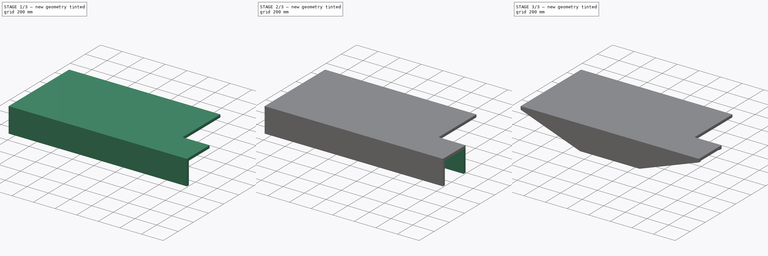
[diagram: build sequence overview — one tinted view per stage of 3, left to right]
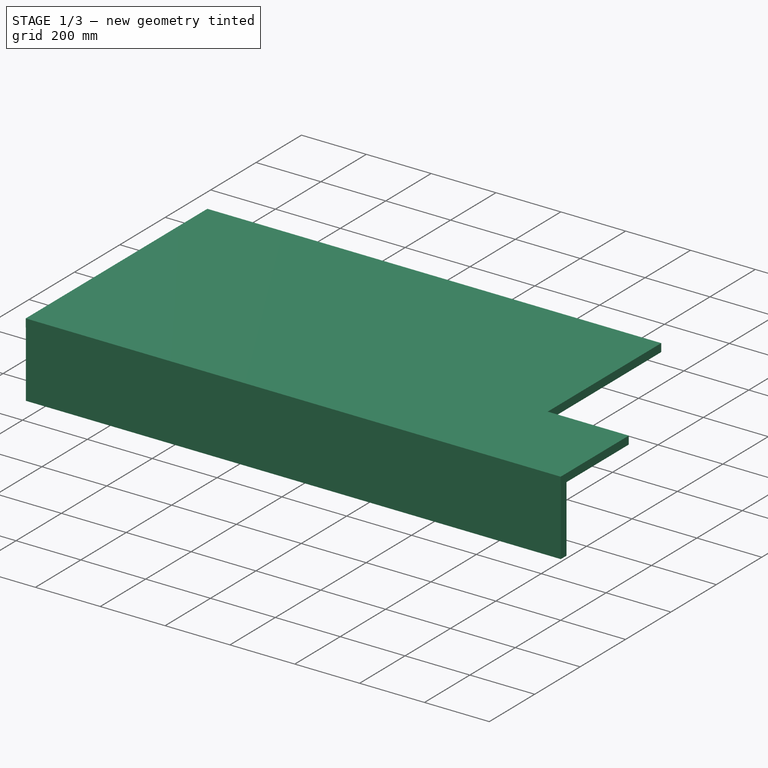
[diagram: stage 1 of 3 — iso view after this stage's code; geometry added in this stage tinted green]
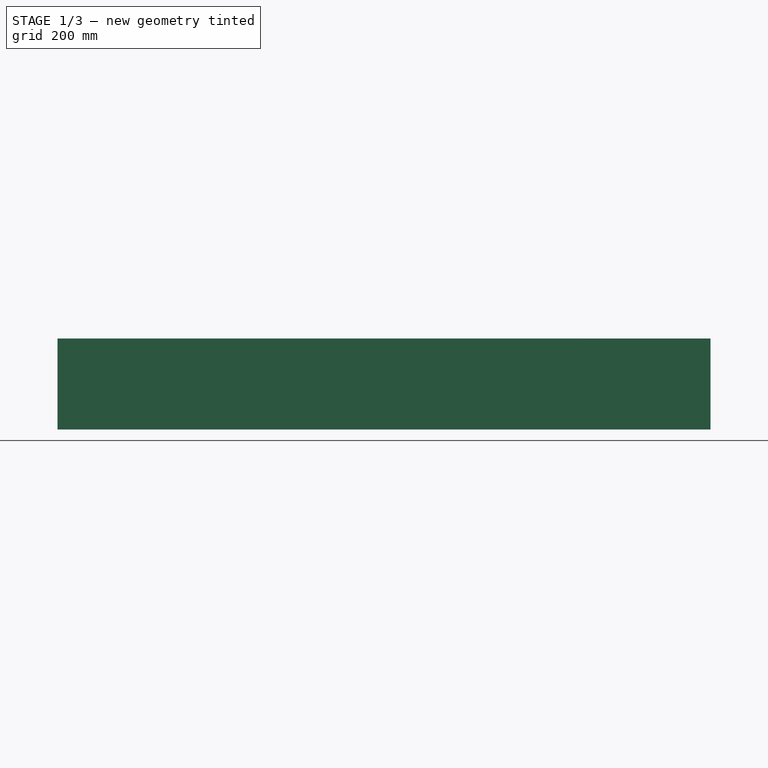
[diagram: stage 1 of 3 — front view after this stage's code; geometry added in this stage tinted green]
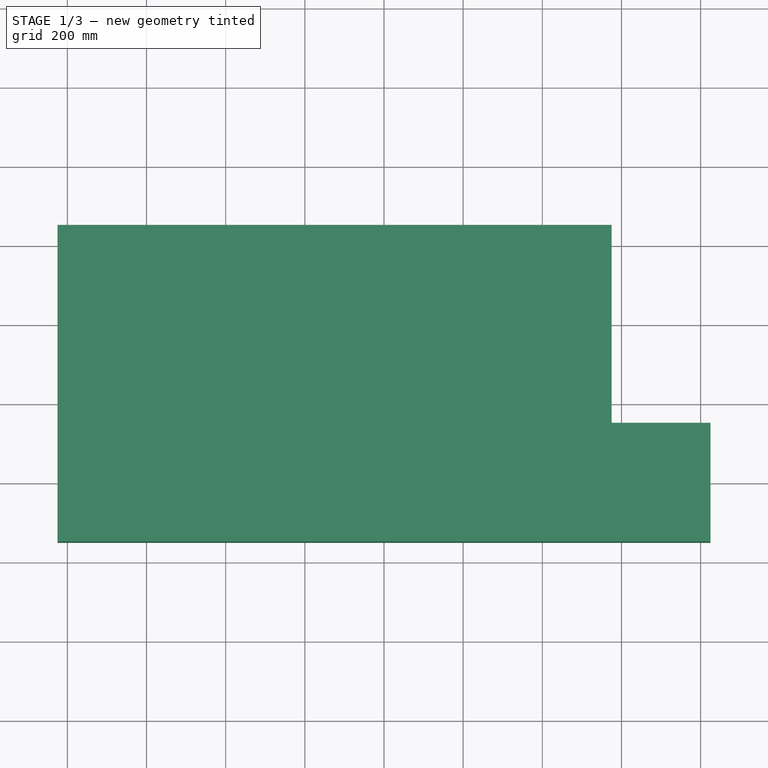
[diagram: stage 1 of 3 — top view after this stage's code; geometry added in this stage tinted green]
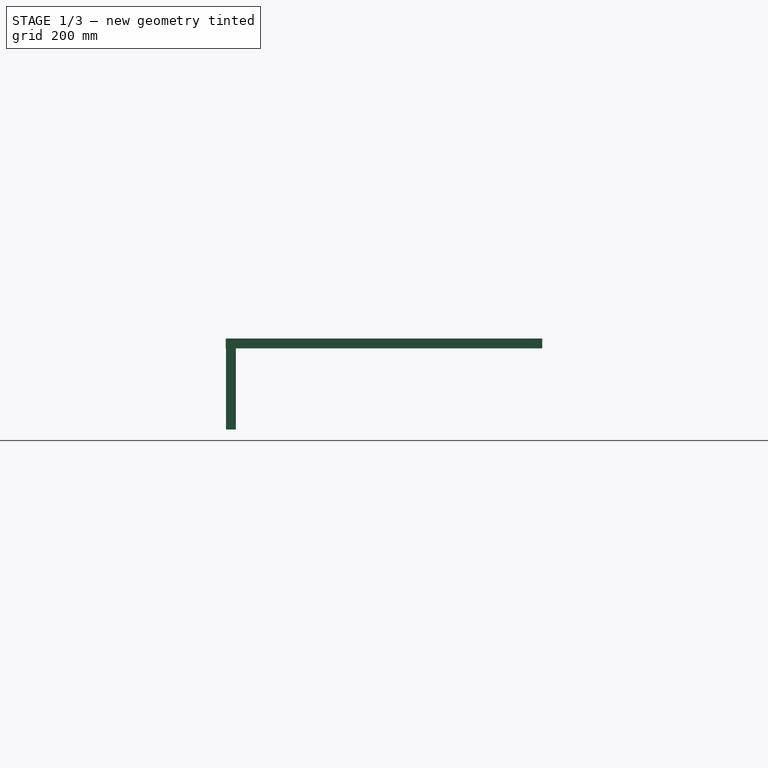
[diagram: stage 1 of 3 — right view after this stage's code; geometry added in this stage tinted green]
FCSTD DOCUMENT  (FreeCAD 0.17R5235 (Git shallow))
Label: PlatformeDroit
License: All rights reserved
LicenseURL: http://en.wikipedia.org/wiki/All_rights_reserved
objects: Sketcher::SketchObject×3, PartDesign::Pad×3, PartDesign::Mirrored×2, PartDesign::Body×1, Part::Chamfer×1
note: 13 computed .brp shape members not serialized (recipe doc carries the construction recipe); baked Part::Feature solids carry a one-line shape summary decoded from their .brp

FEATURE [Sketcher::SketchObject] Sketch  label="Plateforme_Sketch"
  MapMode = 5
  Support = -> [XY_Plane]
  sketch-geometry (6):
    g0: LineSegment StartX=825 StartY=-150 StartZ=0 EndX=-825 EndY=-150 EndZ=0
    g1: LineSegment StartX=-825 StartY=-150 StartZ=0 EndX=-825 EndY=650 EndZ=0
    g2: LineSegment StartX=575 StartY=650 StartZ=0 EndX=575 EndY=150 EndZ=0
    g3: LineSegment StartX=825 StartY=150 StartZ=0 EndX=575 EndY=150 EndZ=0
    g4: LineSegment StartX=825 StartY=150 StartZ=0 EndX=825 EndY=-150 EndZ=0
    g5: LineSegment StartX=575 StartY=650 StartZ=0 EndX=-825 EndY=650 EndZ=0
  constraints (18):
    c: Coincident(g0,g1)
    c: Horizontal(g0)
    c: Vertical(g1)
    c: Vertical(g2)
    c: Coincident(g3,g2)
    c: Horizontal(g3)
    c: DistanceX(g0,g0) = 1650
    c: DistanceY(g0,g1) = 800
    c: Coincident(g4,g3)
    c: Coincident(g4,g0)
    c: Vertical(g4)
    c: Coincident(g5,g2)
    c: Coincident(g5,g1)
    c: Horizontal(g5)
    c: DistanceX(g2,g3) = 250
    c: DistanceY(g0,g3) = 300
    c: Symmetric(g3,g0,g-1)
    c: Symmetric(g0,g0,g-2)
FEATURE [PartDesign::Pad] Pad  label="plateforme_Pad"
  Length = 25
  Length2 = 100
  Profile = -> Sketch
  Type = 0
FEATURE [Sketcher::SketchObject] Sketch001  label="Support_Sketch"
  MapMode = 5
  Placement = pos=(0,0,0) rot=(1,0,0;3.14159rad)
  Support = -> [Pad]
  sketch-geometry (4):
    g0: LineSegment StartX=-825 StartY=149.323 StartZ=0 EndX=825 EndY=149.323 EndZ=0
    g1: LineSegment StartX=825 StartY=149.323 StartZ=0 EndX=825 EndY=124.323 EndZ=0
    g2: LineSegment StartX=825 StartY=124.323 StartZ=0 EndX=-825 EndY=124.323 EndZ=0
    g3: LineSegment StartX=-825 StartY=124.323 StartZ=0 EndX=-825 EndY=149.323 EndZ=0
  constraints (11):
    c: Coincident(g0,g1)
    c: Coincident(g1,g2)
    c: Coincident(g2,g3)
    c: Coincident(g3,g0)
    c: Horizontal(g0)
    c: Horizontal(g2)
    c: Vertical(g1)
    c: Vertical(g3)
    c: DistanceY(g1,g0) = 25
    c: DistanceX(g0,g0) = 1650
    c: Symmetric(g0,g0,g-2)
FEATURE [PartDesign::Pad] Pad001  label="Support_Pad"
  BaseFeature = -> Pad
  Length = 205
  Length2 = 100
  Profile = -> Sketch001
  Type = 0
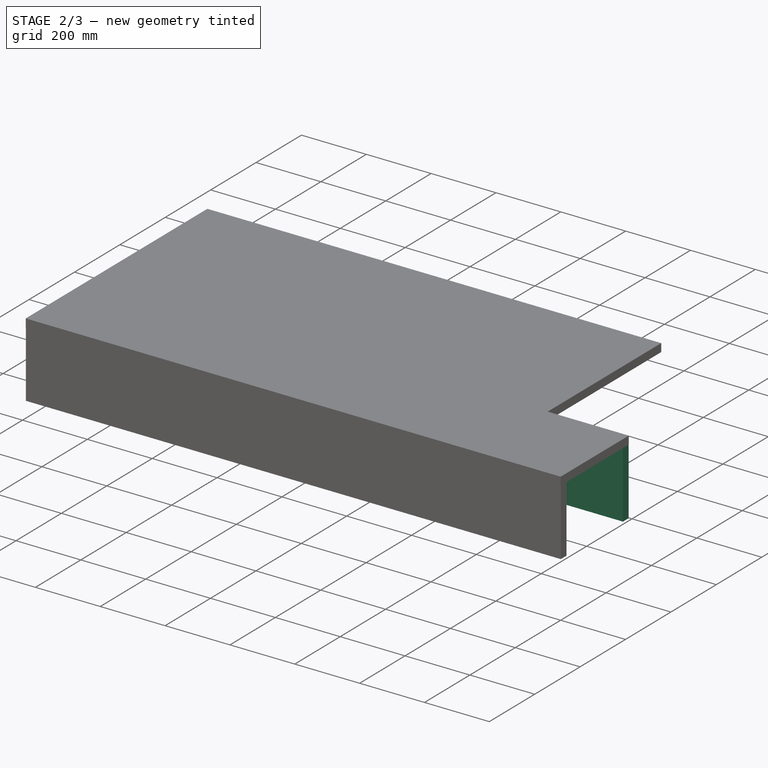
[diagram: stage 2 of 3 — iso view after this stage's code; geometry added in this stage tinted green]
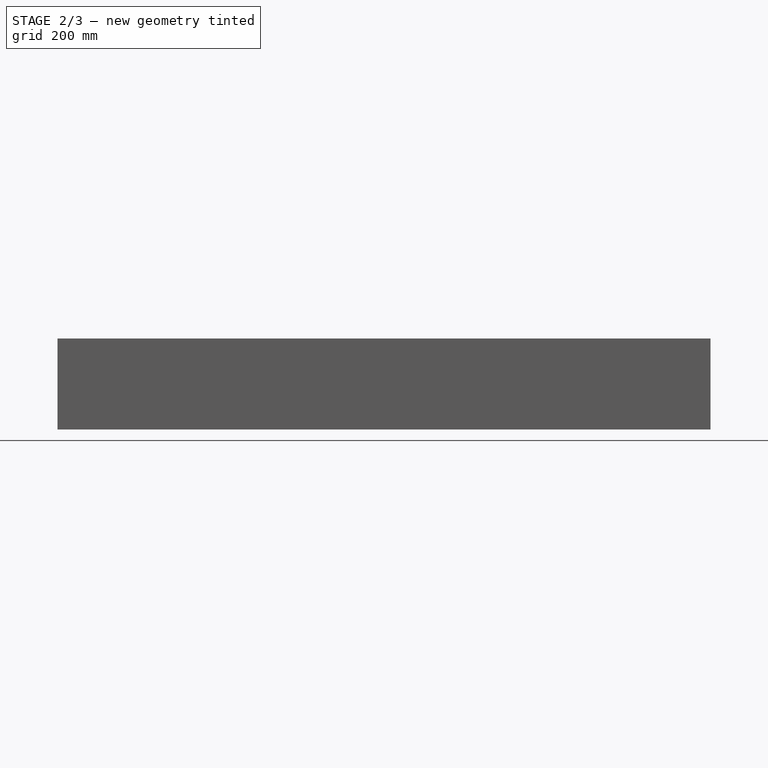
[diagram: stage 2 of 3 — front view after this stage's code; geometry added in this stage tinted green]
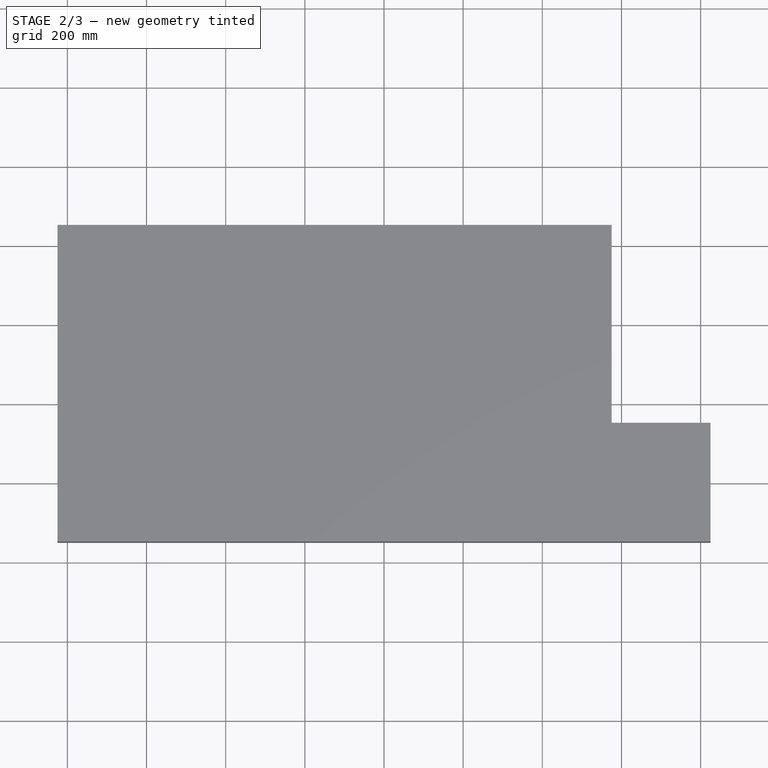
[diagram: stage 2 of 3 — top view after this stage's code; geometry added in this stage tinted green]
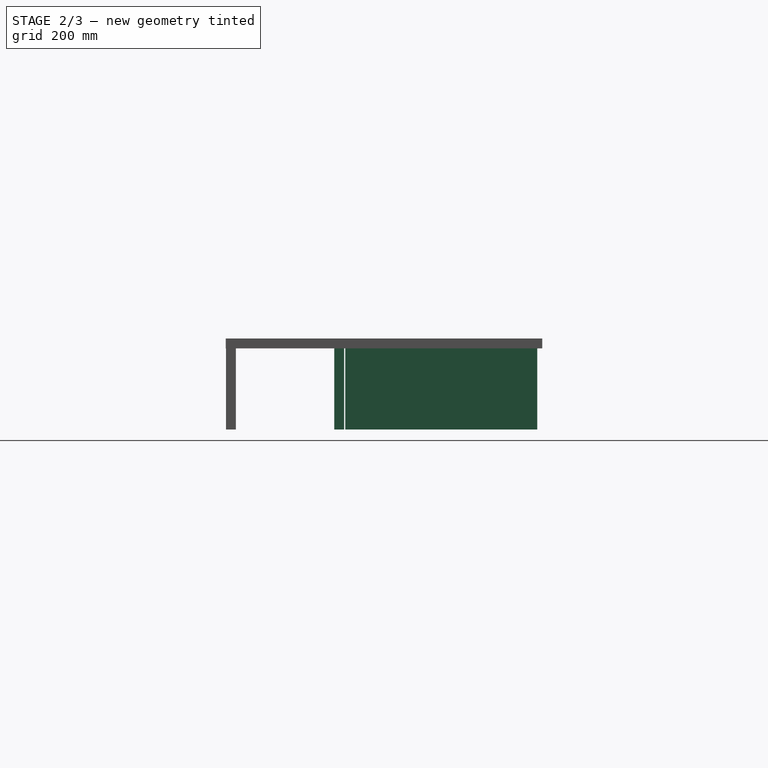
[diagram: stage 2 of 3 — right view after this stage's code; geometry added in this stage tinted green]
FEATURE [Sketcher::SketchObject] Sketch002
  MapMode = 5
  Placement = pos=(0,0,0) rot=(1,0,0;3.14159rad)
  sketch-geometry (4):
    g0: LineSegment StartX=-225 StartY=-151.956 StartZ=0 EndX=-250 EndY=-151.956 EndZ=0
    g1: LineSegment StartX=-250 StartY=-151.956 StartZ=0 EndX=-250 EndY=-637.062 EndZ=0
    g2: LineSegment StartX=-250 StartY=-637.062 StartZ=0 EndX=-225 EndY=-637.062 EndZ=0
    g3: LineSegment StartX=-225 StartY=-637.062 StartZ=0 EndX=-225 EndY=-151.956 EndZ=0
  constraints (10):
    c: Coincident(g0,g1)
    c: Coincident(g1,g2)
    c: Coincident(g2,g3)
    c: Coincident(g3,g0)
    c: Horizontal(g0)
    c: Horizontal(g2)
    c: Vertical(g1)
    c: Vertical(g3)
    c: DistanceX(g0,g-1) = 250
    c: DistanceX(g1,g2) = 25
FEATURE [PartDesign::Pad] Pad002
  BaseFeature = -> Pad001
  Length = 205
  Length2 = 100
  Profile = -> Sketch002
  Type = 0
FEATURE [PartDesign::Mirrored] Mirrored
  BaseFeature = -> Pad002
  MirrorPlane = -> XZ_Plane
  Originals = -> [Pad001]
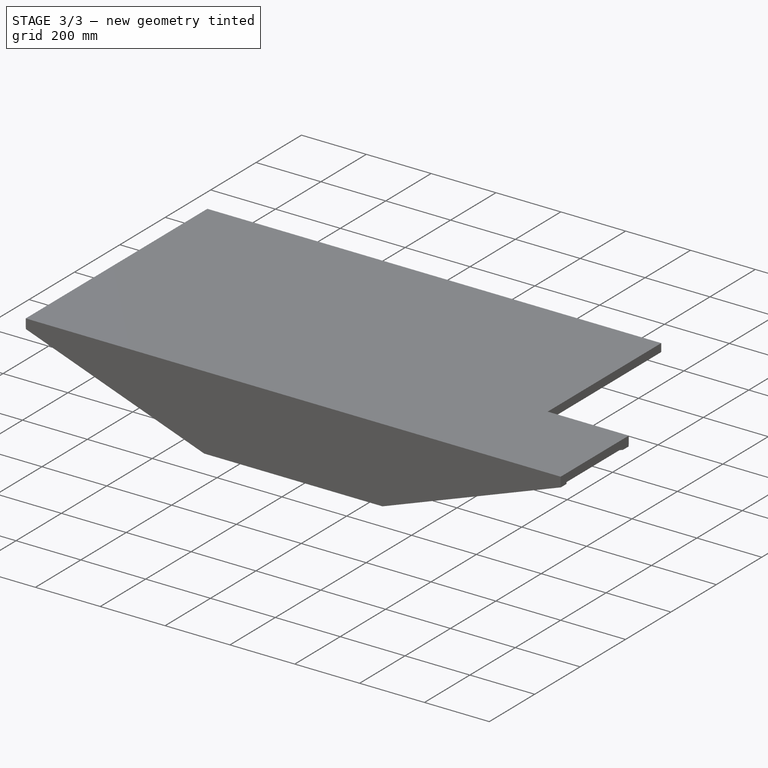
[diagram: stage 3 of 3 — iso view after this stage's code; geometry added in this stage tinted green]
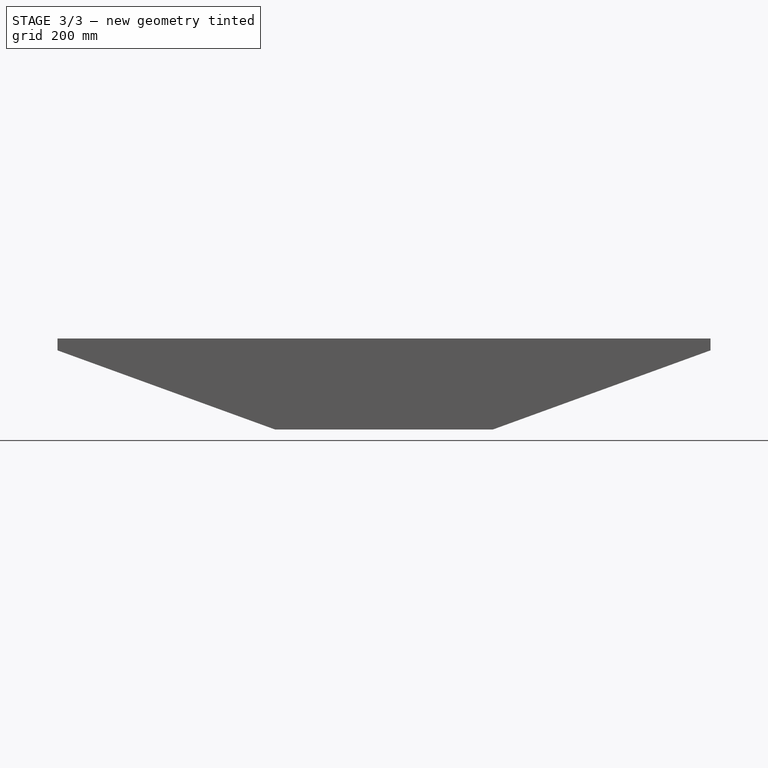
[diagram: stage 3 of 3 — front view after this stage's code; geometry added in this stage tinted green]
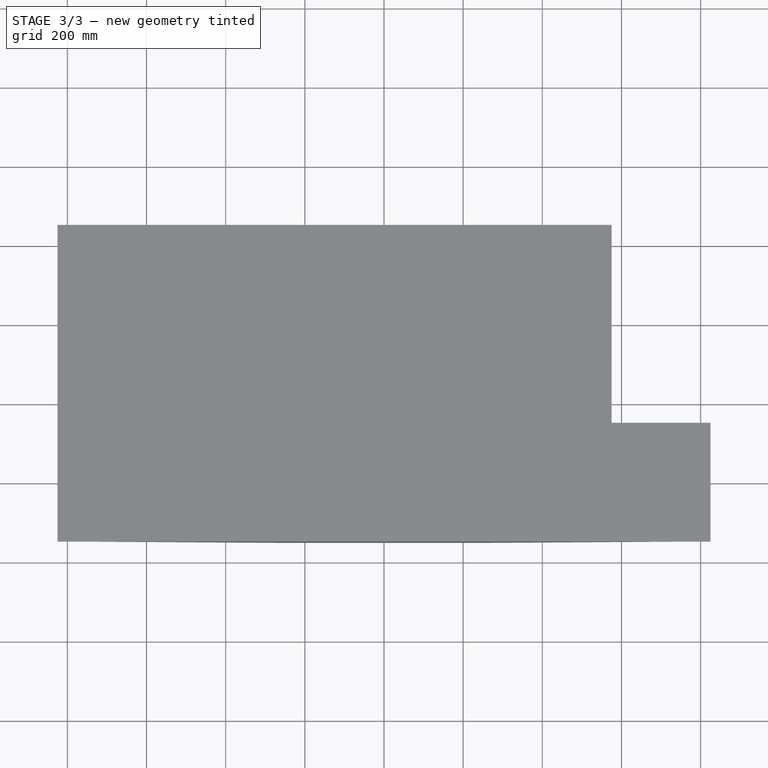
[diagram: stage 3 of 3 — top view after this stage's code; geometry added in this stage tinted green]
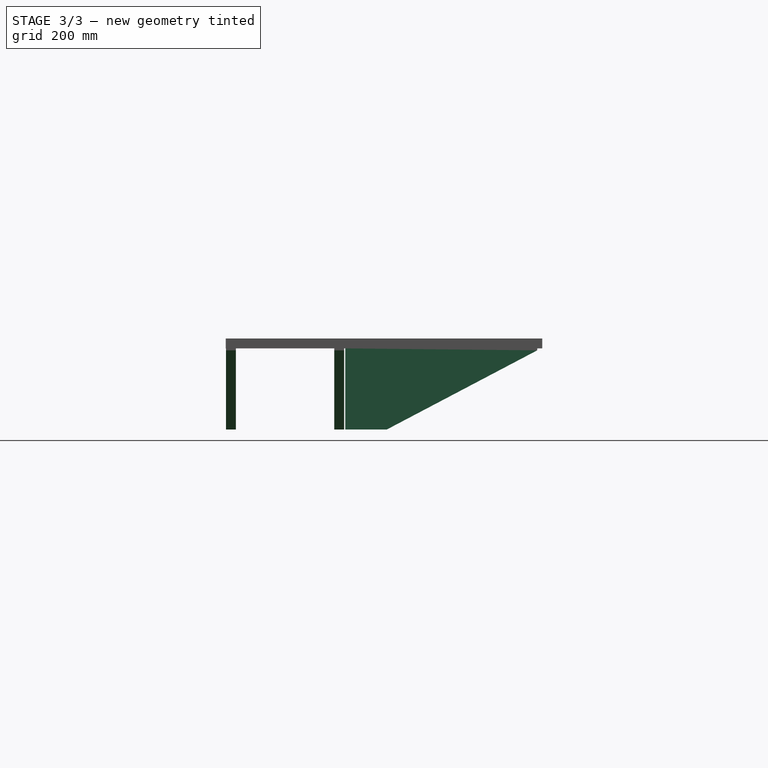
[diagram: stage 3 of 3 — right view after this stage's code; geometry added in this stage tinted green]
FEATURE [PartDesign::Mirrored] Mirrored001
  BaseFeature = -> Mirrored
  MirrorPlane = -> YZ_Plane
  Originals = -> [Pad002]
FEATURE [PartDesign::Body] Body
  Group = -> [Sketch,Pad,Sketch001,Pad001,Pad002,Mirrored,Sketch002,Mirrored001]
  Origin = -> Origin
FEATURE [Part::Chamfer] Chamfer
  Base = -> Mirrored001
  Edges = 6 edges: [Edge29 r1=200 r2=550,Edge35 r1=200 r2=550,Edge54 r1=200 r2=380,Edge59 r1=200 r2=380,Edge65 r1=550 r2=200,Edge70 r1=550 r2=200]
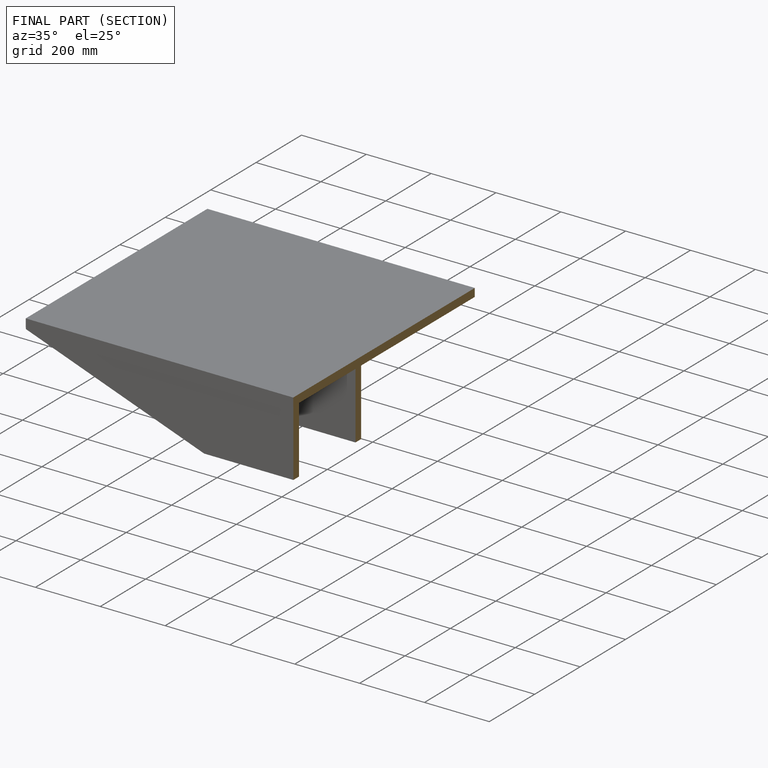
[diagram: finished part — half-section view (interior)]
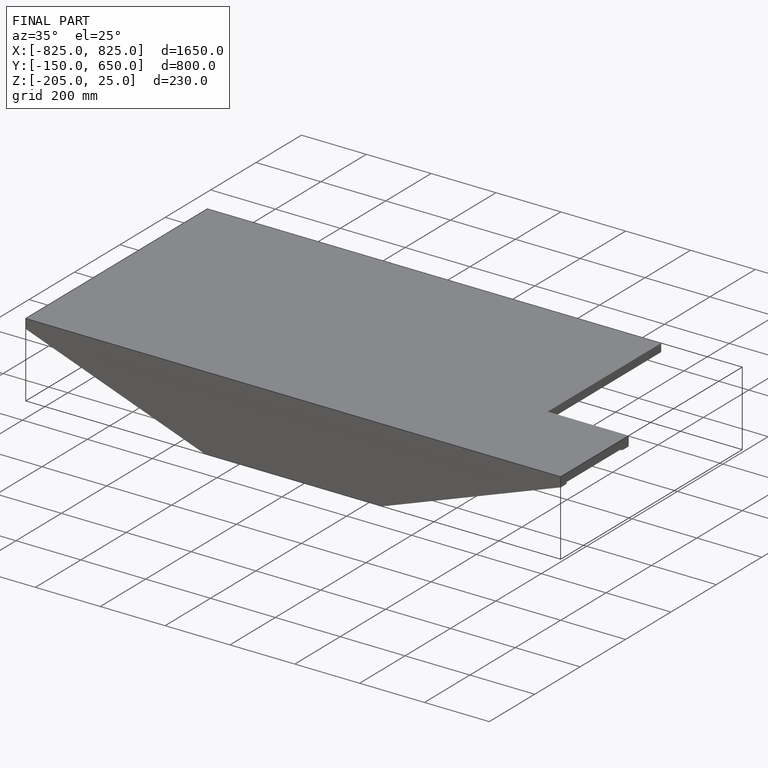
[diagram: finished part — iso view with bounding-box wireframe]
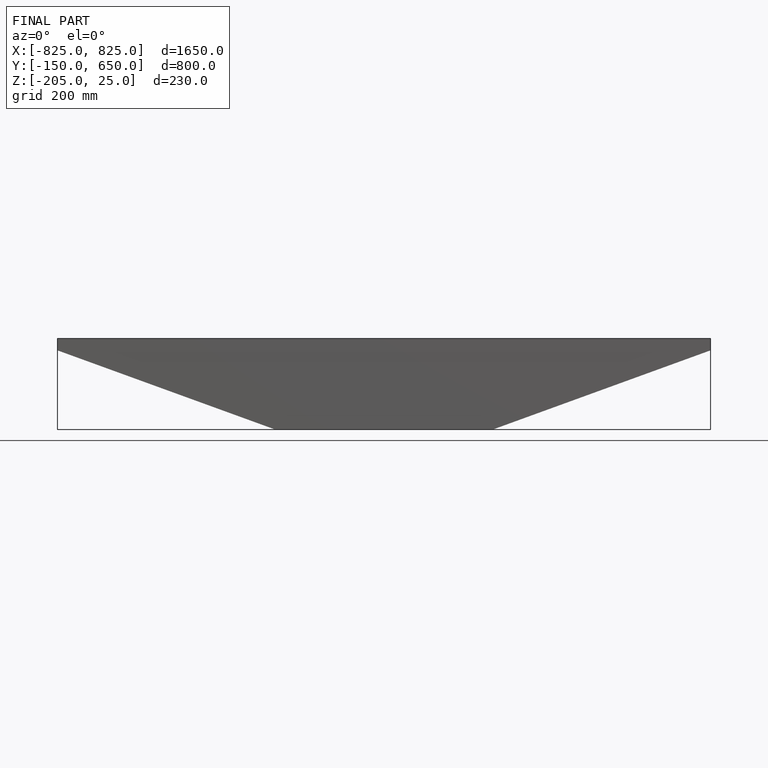
[diagram: finished part — front view with bounding-box wireframe]
